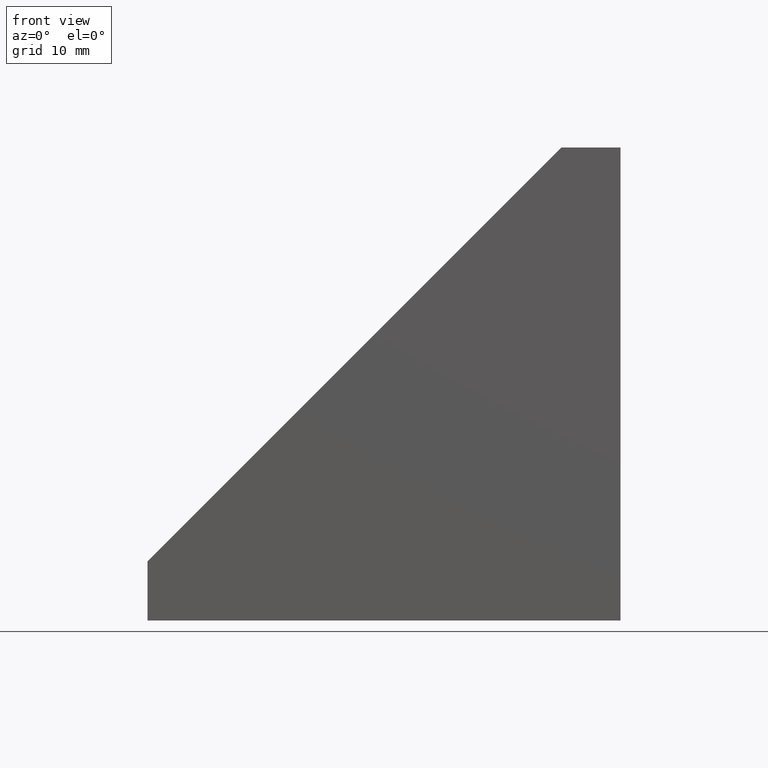
[diagram: clean part render]
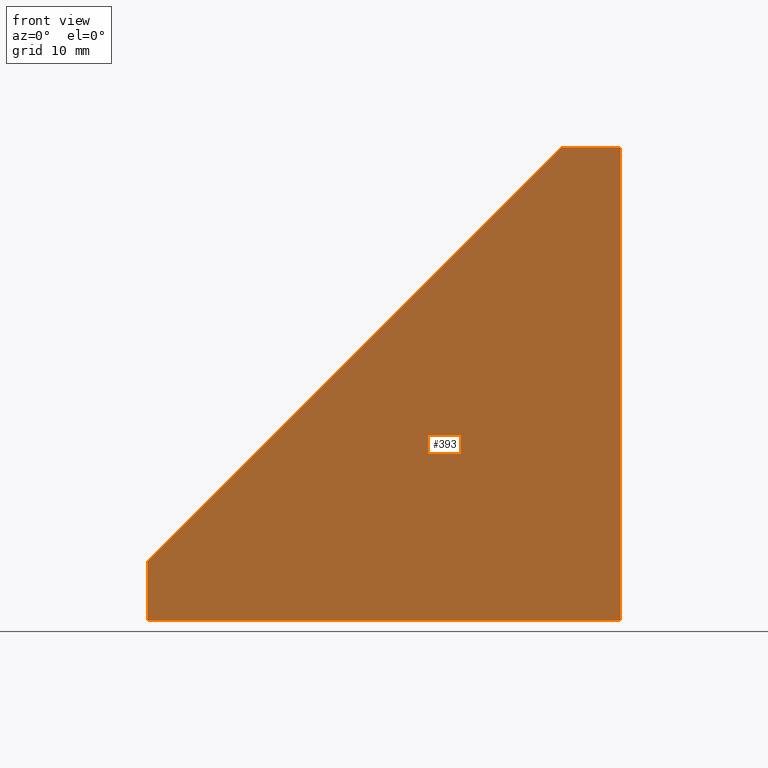
[diagram: same view with one face highlighted and labeled with its STEP entity id]
A machine part, front view. The second image highlights one B-rep face of the part: STEP entity #393.
In plain terms, the highlighted planar face has unit normal (0, -1, 0).
Its self-contained STEP definition (entity closure, byte-faithful):
#27=PLANE('',#444);
#47=FACE_OUTER_BOUND('',#69,.T.);
#69=EDGE_LOOP('',(#326,#327,#328,#329,#330));
#102=LINE('',#623,#148);
#108=LINE('',#635,#154);
#109=LINE('',#637,#155);
#110=LINE('',#638,#156);
#111=LINE('',#639,#157);
#148=VECTOR('',#515,46.669047558126);
#154=VECTOR('',#525,39.9999999998399);
#155=VECTOR('',#526,39.9999999998399);
#156=VECTOR('',#527,6.99999999997181);
#157=VECTOR('',#528,6.99999999997181);
#201=VERTEX_POINT('',#621);
#202=VERTEX_POINT('',#622);
#205=VERTEX_POINT('',#633);
#206=VERTEX_POINT('',#634);
#207=VERTEX_POINT('',#636);
#246=EDGE_CURVE('',#201,#202,#102,.T.);
#252=EDGE_CURVE('',#205,#206,#108,.T.);
#253=EDGE_CURVE('',#206,#207,#109,.T.);
#254=EDGE_CURVE('',#207,#201,#110,.T.);
#255=EDGE_CURVE('',#202,#205,#111,.T.);
#326=ORIENTED_EDGE('',*,*,#252,.T.);
#327=ORIENTED_EDGE('',*,*,#253,.T.);
#328=ORIENTED_EDGE('',*,*,#254,.T.);
#329=ORIENTED_EDGE('',*,*,#246,.T.);
#330=ORIENTED_EDGE('',*,*,#255,.T.);
#393=ADVANCED_FACE('',(#47),#27,.T.);
#444=AXIS2_PLACEMENT_3D('',#632,#523,#524);
#515=DIRECTION('',(-0.707106781186543,-4.75785593542436E-17,-0.707106781186552));
#523=DIRECTION('center_axis',(0.,-1.,0.));
#524=DIRECTION('ref_axis',(0.,0.,-1.));
#525=DIRECTION('',(1.,0.,0.));
#526=DIRECTION('',(0.,0.,1.));
#527=DIRECTION('',(-1.,0.,0.));
#528=DIRECTION('',(0.,0.,-1.));
#621=CARTESIAN_POINT('',(17.4940411228842,-12.5,39.9999999998404));
#622=CARTESIAN_POINT('',(-17.49999999993,-12.5,5.00595887702575));
#623=CARTESIAN_POINT('',(16.4970205614112,-12.5,39.0029794383673));
#632=CARTESIAN_POINT('Origin',(-17.5000433070172,-12.5,-4.3307087252E-5));
#633=CARTESIAN_POINT('',(-17.49999999993,-12.5,7.654042E-16));
#634=CARTESIAN_POINT('',(22.49999999991,-12.5,4.555128E-13));
#635=CARTESIAN_POINT('',(-17.49999999993,-12.5,7.654042E-16));
#636=CARTESIAN_POINT('',(22.49999999991,-12.5,39.9999999998404));
#637=CARTESIAN_POINT('',(22.49999999991,-12.5,4.555128E-13));
#638=CARTESIAN_POINT('',(22.49999999991,-12.5,39.9999999998404));
#639=CARTESIAN_POINT('',(-17.49999999993,-12.5,6.99999999997181));